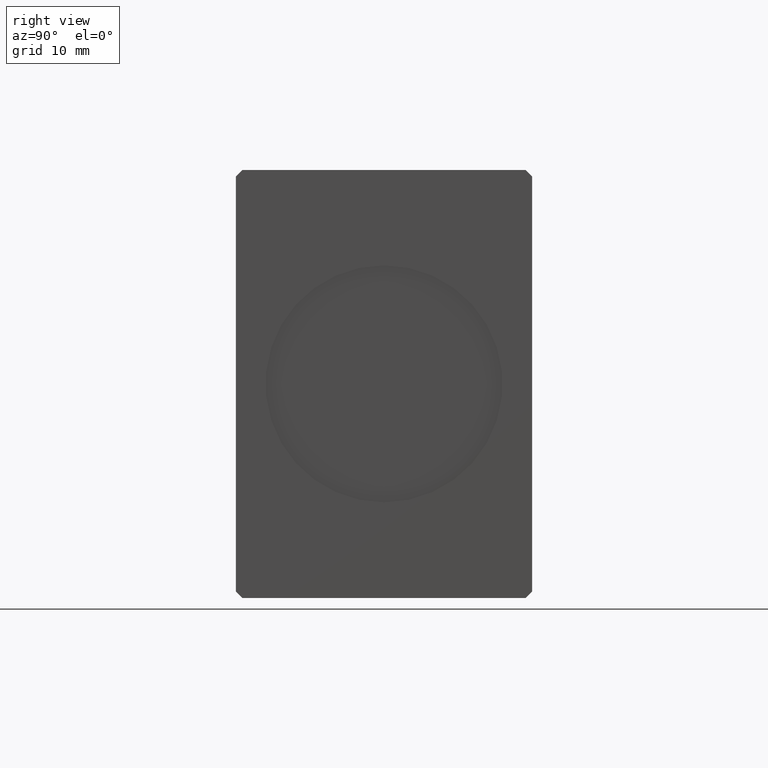
[diagram: clean part render]
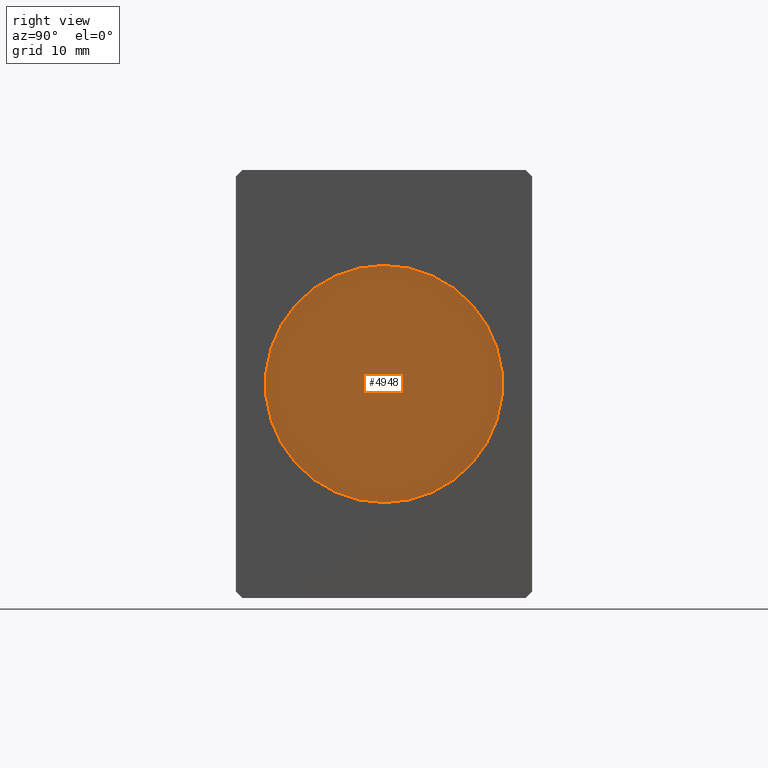
[diagram: same view with one face highlighted and labeled with its STEP entity id]
A machine part, right view. The second image highlights one B-rep face of the part: STEP entity #4948.
In plain terms, the highlighted planar face has unit normal (1, 0, 0).
Its self-contained STEP definition (entity closure, byte-faithful):
#150 = DIRECTION ( 'NONE',  ( 0.000000000000000000, 0.000000000000000000, -1.000000000000000000 ) ) ;
#274 = ORIENTED_EDGE ( 'NONE', *, *, #7474, .T. ) ;
#1280 = DIRECTION ( 'NONE',  ( 1.000000000000000000, 0.000000000000000000, 0.000000000000000000 ) ) ;
#1479 = DIRECTION ( 'NONE',  ( 0.000000000000000000, 0.000000000000000000, -1.000000000000000000 ) ) ;
#4270 = AXIS2_PLACEMENT_3D ( 'NONE', #29266, #1280, #1479 ) ;
#4515 = CIRCLE ( 'NONE', #18216, 18.00000000000000000 ) ;
#4948 = ADVANCED_FACE ( 'NONE', ( #10776 ), #8734, .T. ) ;
#6084 = CARTESIAN_POINT ( 'NONE',  ( 77.79999999999999716, 0.000000000000000000, 0.000000000000000000 ) ) ;
#6247 = EDGE_LOOP ( 'NONE', ( #274, #35800 ) ) ;
#7404 = VERTEX_POINT ( 'NONE', #29067 ) ;
#7474 = EDGE_CURVE ( 'NONE', #7404, #19375, #33636, .T. ) ;
#8734 = PLANE ( 'NONE',  #40181 ) ;
#10776 = FACE_OUTER_BOUND ( 'NONE', #6247, .T. ) ;
#12195 = DIRECTION ( 'NONE',  ( 1.000000000000000000, 0.000000000000000000, 0.000000000000000000 ) ) ;
#15266 = DIRECTION ( 'NONE',  ( 1.000000000000000000, 0.000000000000000000, 0.000000000000000000 ) ) ;
#15464 = CARTESIAN_POINT ( 'NONE',  ( 77.79999999999999716, 0.000000000000000000, 0.000000000000000000 ) ) ;
#18216 = AXIS2_PLACEMENT_3D ( 'NONE', #6084, #12195, #24668 ) ;
#19154 = CARTESIAN_POINT ( 'NONE',  ( 77.79999999999999716, 2.204364238465235428E-15, 18.00000000000000000 ) ) ;
#19375 = VERTEX_POINT ( 'NONE', #19154 ) ;
#24668 = DIRECTION ( 'NONE',  ( 0.000000000000000000, 0.000000000000000000, -1.000000000000000000 ) ) ;
#26474 = EDGE_CURVE ( 'NONE', #19375, #7404, #4515, .T. ) ;
#29067 = CARTESIAN_POINT ( 'NONE',  ( 77.79999999999999716, 0.000000000000000000, -18.00000000000000000 ) ) ;
#29266 = CARTESIAN_POINT ( 'NONE',  ( 77.79999999999999716, 0.000000000000000000, 0.000000000000000000 ) ) ;
#33636 = CIRCLE ( 'NONE', #4270, 18.00000000000000000 ) ;
#35800 = ORIENTED_EDGE ( 'NONE', *, *, #26474, .T. ) ;
#40181 = AXIS2_PLACEMENT_3D ( 'NONE', #15464, #15266, #150 ) ;